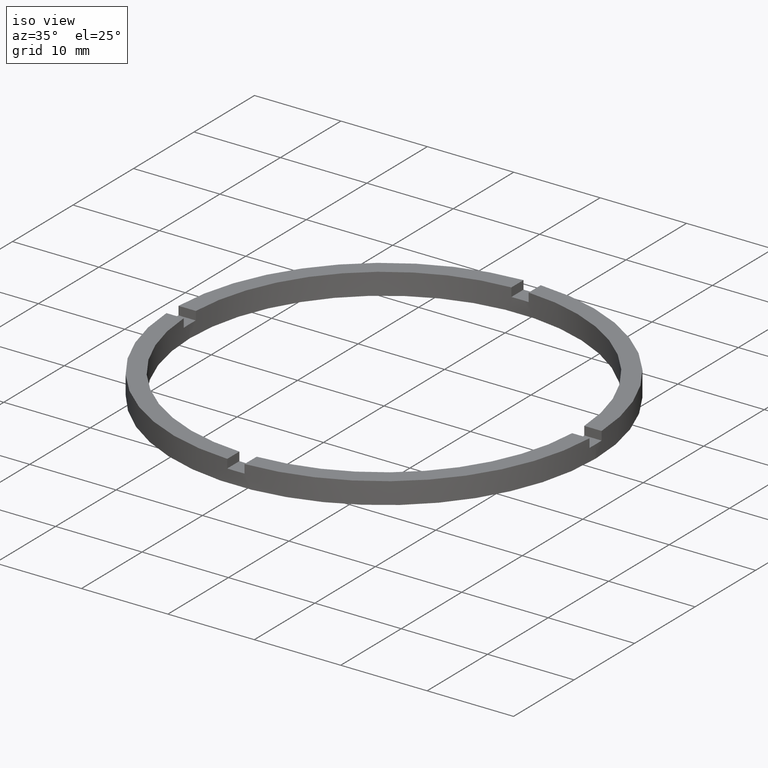
[diagram: clean part render]
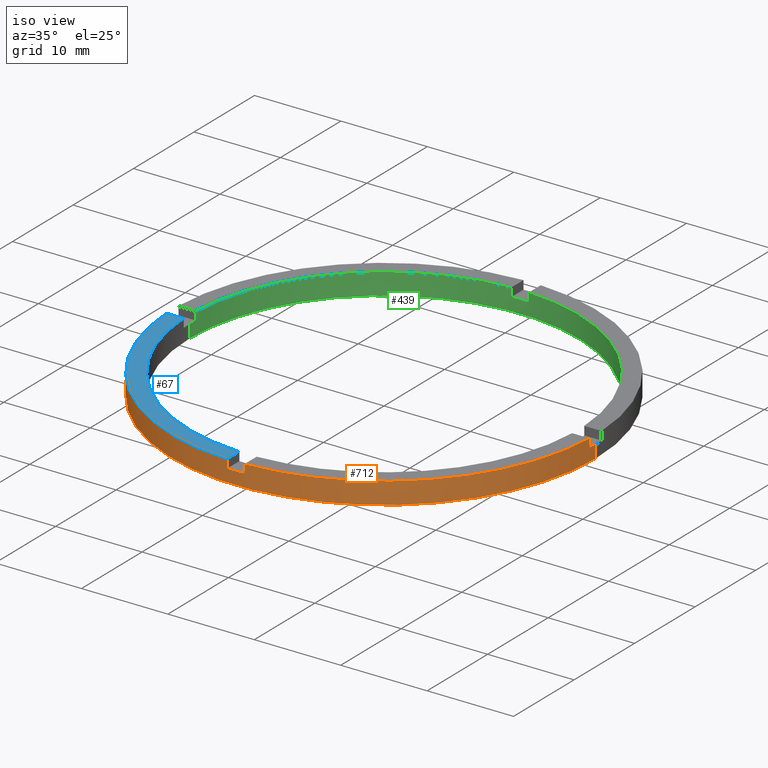
[diagram: same view with three faces highlighted in distinct colors, each labeled with its STEP entity id]
A machine part, iso view with three faces highlighted in distinct colors.
Their STEP definitions:

[orange] entity #712 — the highlighted cylindrical surface (partial cylindrical patch) has radius 24.5 mm, axis along (-0, -0, -1).
#10 = VERTEX_POINT ( 'NONE', #254 ) ;
#21 = VERTEX_POINT ( 'NONE', #198 ) ;
#38 = EDGE_LOOP ( 'NONE', ( #185, #371, #123, #92, #451, #166, #627, #118, #329, #117, #604, #634 ) ) ;
#39 = CIRCLE ( 'NONE', #418, 24.50000000000000000 ) ;
#45 = CARTESIAN_POINT ( 'NONE',  ( 0.000000000000000000, 0.000000000000000000, 1.500000000000000000 ) ) ;
#49 = CARTESIAN_POINT ( 'NONE',  ( 0.000000000000000000, 0.000000000000000000, 1.500000000000000000 ) ) ;
#50 = DIRECTION ( 'NONE',  ( -0.000000000000000000, -0.000000000000000000, -1.000000000000000000 ) ) ;
#61 = EDGE_CURVE ( 'NONE', #21, #437, #561, .T. ) ;
#62 = CIRCLE ( 'NONE', #656, 24.50000000000000000 ) ;
#66 = FACE_OUTER_BOUND ( 'NONE', #38, .T. ) ;
#82 = LINE ( 'NONE', #376, #103 ) ;
#92 = ORIENTED_EDGE ( 'NONE', *, *, #714, .F. ) ;
#94 = CIRCLE ( 'NONE', #199, 24.50000000000000000 ) ;
#95 = EDGE_CURVE ( 'NONE', #693, #437, #308, .T. ) ;
#103 = VECTOR ( 'NONE', #718, 1000.000000000000000 ) ;
#106 = CARTESIAN_POINT ( 'NONE',  ( -24.47958332978729601, -1.000000000000025757, 2.500000000000000000 ) ) ;
#117 = ORIENTED_EDGE ( 'NONE', *, *, #95, .F. ) ;
#118 = ORIENTED_EDGE ( 'NONE', *, *, #740, .F. ) ;
#123 = ORIENTED_EDGE ( 'NONE', *, *, #699, .T. ) ;
#125 = DIRECTION ( 'NONE',  ( -0.000000000000000000, -0.000000000000000000, -1.000000000000000000 ) ) ;
#126 = DIRECTION ( 'NONE',  ( 1.000000000000000000, 0.000000000000000000, 0.000000000000000000 ) ) ;
#157 = CARTESIAN_POINT ( 'NONE',  ( -24.50000000000000000, 0.000000000000000000, 2.500000000000000000 ) ) ;
#158 = DIRECTION ( 'NONE',  ( 0.000000000000000000, 0.000000000000000000, 1.000000000000000000 ) ) ;
#161 = DIRECTION ( 'NONE',  ( 0.000000000000000000, 0.000000000000000000, 1.000000000000000000 ) ) ;
#166 = ORIENTED_EDGE ( 'NONE', *, *, #200, .F. ) ;
#175 = AXIS2_PLACEMENT_3D ( 'NONE', #409, #50, #745 ) ;
#178 = CARTESIAN_POINT ( 'NONE',  ( 0.9999999999998393507, -24.47958332978729956, 1.500000000000000000 ) ) ;
#185 = ORIENTED_EDGE ( 'NONE', *, *, #440, .F. ) ;
#198 = CARTESIAN_POINT ( 'NONE',  ( -24.47958332978729601, -1.000000000000025757, 2.500000000000000000 ) ) ;
#199 = AXIS2_PLACEMENT_3D ( 'NONE', #408, #744, #259 ) ;
#200 = EDGE_CURVE ( 'NONE', #10, #632, #39, .T. ) ;
#204 = DIRECTION ( 'NONE',  ( 1.000000000000000000, 0.000000000000000000, 0.000000000000000000 ) ) ;
#207 = DIRECTION ( 'NONE',  ( -0.000000000000000000, -0.000000000000000000, -1.000000000000000000 ) ) ;
#209 = AXIS2_PLACEMENT_3D ( 'NONE', #45, #486, #446 ) ;
#214 = CARTESIAN_POINT ( 'NONE',  ( 24.50000000000000000, 3.000384657911015469E-15, 0.000000000000000000 ) ) ;
#254 = CARTESIAN_POINT ( 'NONE',  ( -1.000000000000160760, -24.47958332978728890, 1.500000000000000000 ) ) ;
#259 = DIRECTION ( 'NONE',  ( 1.000000000000000000, 0.000000000000000000, 0.000000000000000000 ) ) ;
#260 = DIRECTION ( 'NONE',  ( 0.000000000000000000, 0.000000000000000000, 1.000000000000000000 ) ) ;
#264 = LINE ( 'NONE', #661, #269 ) ;
#269 = VECTOR ( 'NONE', #771, 1000.000000000000000 ) ;
#298 = CARTESIAN_POINT ( 'NONE',  ( 24.47958332978728890, -1.000000000000157652, 1.500000000000000000 ) ) ;
#303 = VECTOR ( 'NONE', #207, 1000.000000000000000 ) ;
#307 = EDGE_CURVE ( 'NONE', #364, #632, #264, .T. ) ;
#308 = CIRCLE ( 'NONE', #209, 24.50000000000000000 ) ;
#319 = LINE ( 'NONE', #515, #591 ) ;
#325 = CIRCLE ( 'NONE', #399, 24.50000000000000000 ) ;
#326 = VERTEX_POINT ( 'NONE', #298 ) ;
#329 = ORIENTED_EDGE ( 'NONE', *, *, #61, .T. ) ;
#339 = DIRECTION ( 'NONE',  ( 1.000000000000000000, 0.000000000000000000, 0.000000000000000000 ) ) ;
#340 = VERTEX_POINT ( 'NONE', #602 ) ;
#342 = VECTOR ( 'NONE', #733, 1000.000000000000000 ) ;
#356 = CARTESIAN_POINT ( 'NONE',  ( 0.000000000000000000, 0.000000000000000000, 2.500000000000000000 ) ) ;
#359 = LINE ( 'NONE', #644, #342 ) ;
#364 = VERTEX_POINT ( 'NONE', #550 ) ;
#371 = ORIENTED_EDGE ( 'NONE', *, *, #657, .F. ) ;
#376 = CARTESIAN_POINT ( 'NONE',  ( 24.50000000000000000, 3.000384657911015469E-15, 2.500000000000000000 ) ) ;
#399 = AXIS2_PLACEMENT_3D ( 'NONE', #356, #260, #126 ) ;
#408 = CARTESIAN_POINT ( 'NONE',  ( 0.000000000000000000, 0.000000000000000000, 0.000000000000000000 ) ) ;
#409 = CARTESIAN_POINT ( 'NONE',  ( 0.000000000000000000, 0.000000000000000000, 2.500000000000000000 ) ) ;
#418 = AXIS2_PLACEMENT_3D ( 'NONE', #736, #426, #671 ) ;
#426 = DIRECTION ( 'NONE',  ( -0.000000000000000000, 0.000000000000000000, 1.000000000000000000 ) ) ;
#429 = CARTESIAN_POINT ( 'NONE',  ( 0.000000000000000000, 0.000000000000000000, 2.500000000000000000 ) ) ;
#437 = VERTEX_POINT ( 'NONE', #487 ) ;
#440 = EDGE_CURVE ( 'NONE', #475, #455, #82, .T. ) ;
#446 = DIRECTION ( 'NONE',  ( 1.000000000000000000, 0.000000000000000000, 0.000000000000000000 ) ) ;
#451 = ORIENTED_EDGE ( 'NONE', *, *, #307, .T. ) ;
#455 = VERTEX_POINT ( 'NONE', #214 ) ;
#463 = DIRECTION ( 'NONE',  ( 0.000000000000000000, 0.000000000000000000, 1.000000000000000000 ) ) ;
#475 = VERTEX_POINT ( 'NONE', #651 ) ;
#479 = VERTEX_POINT ( 'NONE', #684 ) ;
#486 = DIRECTION ( 'NONE',  ( 0.000000000000000000, 0.000000000000000000, 1.000000000000000000 ) ) ;
#487 = CARTESIAN_POINT ( 'NONE',  ( -24.47958332978729601, -1.000000000000025757, 1.500000000000000000 ) ) ;
#515 = CARTESIAN_POINT ( 'NONE',  ( 24.47958332978728890, -1.000000000000157652, 2.500000000000000000 ) ) ;
#550 = CARTESIAN_POINT ( 'NONE',  ( 0.9999999999998393507, -24.47958332978729956, 2.500000000000000000 ) ) ;
#561 = LINE ( 'NONE', #106, #303 ) ;
#591 = VECTOR ( 'NONE', #463, 1000.000000000000000 ) ;
#592 = EDGE_CURVE ( 'NONE', #10, #479, #359, .T. ) ;
#596 = CYLINDRICAL_SURFACE ( 'NONE', #175, 24.50000000000000000 ) ;
#602 = CARTESIAN_POINT ( 'NONE',  ( 24.47958332978728890, -1.000000000000157652, 2.500000000000000000 ) ) ;
#604 = ORIENTED_EDGE ( 'NONE', *, *, #643, .T. ) ;
#613 = LINE ( 'NONE', #157, #615 ) ;
#615 = VECTOR ( 'NONE', #125, 1000.000000000000000 ) ;
#627 = ORIENTED_EDGE ( 'NONE', *, *, #592, .T. ) ;
#632 = VERTEX_POINT ( 'NONE', #178 ) ;
#634 = ORIENTED_EDGE ( 'NONE', *, *, #647, .T. ) ;
#640 = VERTEX_POINT ( 'NONE', #641 ) ;
#641 = CARTESIAN_POINT ( 'NONE',  ( -24.50000000000000000, 0.000000000000000000, 0.000000000000000000 ) ) ;
#643 = EDGE_CURVE ( 'NONE', #693, #640, #613, .T. ) ;
#644 = CARTESIAN_POINT ( 'NONE',  ( -1.000000000000160760, -24.47958332978728890, 2.500000000000000000 ) ) ;
#647 = EDGE_CURVE ( 'NONE', #640, #455, #94, .T. ) ;
#651 = CARTESIAN_POINT ( 'NONE',  ( 24.50000000000000000, 3.000384657911015469E-15, 1.500000000000000000 ) ) ;
#656 = AXIS2_PLACEMENT_3D ( 'NONE', #49, #161, #204 ) ;
#657 = EDGE_CURVE ( 'NONE', #326, #475, #62, .T. ) ;
#661 = CARTESIAN_POINT ( 'NONE',  ( 0.9999999999998393507, -24.47958332978729956, 2.500000000000000000 ) ) ;
#671 = DIRECTION ( 'NONE',  ( 1.000000000000000000, 0.000000000000000000, 0.000000000000000000 ) ) ;
#684 = CARTESIAN_POINT ( 'NONE',  ( -1.000000000000160760, -24.47958332978728890, 2.500000000000000000 ) ) ;
#693 = VERTEX_POINT ( 'NONE', #695 ) ;
#695 = CARTESIAN_POINT ( 'NONE',  ( -24.50000000000000000, 0.000000000000000000, 1.500000000000000000 ) ) ;
#699 = EDGE_CURVE ( 'NONE', #326, #340, #319, .T. ) ;
#712 = ADVANCED_FACE ( 'NONE', ( #66 ), #596, .T. ) ;
#714 = EDGE_CURVE ( 'NONE', #364, #340, #325, .T. ) ;
#718 = DIRECTION ( 'NONE',  ( -0.000000000000000000, -0.000000000000000000, -1.000000000000000000 ) ) ;
#728 = AXIS2_PLACEMENT_3D ( 'NONE', #429, #158, #339 ) ;
#733 = DIRECTION ( 'NONE',  ( 0.000000000000000000, 0.000000000000000000, 1.000000000000000000 ) ) ;
#736 = CARTESIAN_POINT ( 'NONE',  ( 0.000000000000000000, 0.000000000000000000, 1.500000000000000000 ) ) ;
#740 = EDGE_CURVE ( 'NONE', #21, #479, #757, .T. ) ;
#744 = DIRECTION ( 'NONE',  ( 0.000000000000000000, 0.000000000000000000, 1.000000000000000000 ) ) ;
#745 = DIRECTION ( 'NONE',  ( -1.000000000000000000, 0.000000000000000000, 0.000000000000000000 ) ) ;
#757 = CIRCLE ( 'NONE', #728, 24.50000000000000000 ) ;
#771 = DIRECTION ( 'NONE',  ( -0.000000000000000000, -0.000000000000000000, -1.000000000000000000 ) ) ;

[blue] entity #67 — the highlighted planar face has unit normal (0, 0, 1).
#9 = DIRECTION ( 'NONE',  ( 1.000000000000000000, 1.734723475976807341E-16, -0.000000000000000000 ) ) ;
#19 = DIRECTION ( 'NONE',  ( 0.000000000000000000, 0.000000000000000000, 1.000000000000000000 ) ) ;
#21 = VERTEX_POINT ( 'NONE', #198 ) ;
#51 = FACE_OUTER_BOUND ( 'NONE', #753, .T. ) ;
#67 = ADVANCED_FACE ( 'NONE', ( #51 ), #146, .T. ) ;
#72 = VERTEX_POINT ( 'NONE', #655 ) ;
#89 = VECTOR ( 'NONE', #401, 1000.000000000000000 ) ;
#107 = VERTEX_POINT ( 'NONE', #646 ) ;
#109 = AXIS2_PLACEMENT_3D ( 'NONE', #600, #19, #735 ) ;
#133 = EDGE_CURVE ( 'NONE', #72, #107, #569, .T. ) ;
#146 = PLANE ( 'NONE',  #109 ) ;
#156 = DIRECTION ( 'NONE',  ( 1.000000000000000000, 0.000000000000000000, 0.000000000000000000 ) ) ;
#158 = DIRECTION ( 'NONE',  ( 0.000000000000000000, 0.000000000000000000, 1.000000000000000000 ) ) ;
#165 = EDGE_CURVE ( 'NONE', #21, #72, #299, .T. ) ;
#198 = CARTESIAN_POINT ( 'NONE',  ( -24.47958332978729601, -1.000000000000025757, 2.500000000000000000 ) ) ;
#256 = DIRECTION ( 'NONE',  ( 0.000000000000000000, 0.000000000000000000, 1.000000000000000000 ) ) ;
#284 = VECTOR ( 'NONE', #9, 1000.000000000000000 ) ;
#299 = LINE ( 'NONE', #420, #284 ) ;
#314 = LINE ( 'NONE', #723, #89 ) ;
#339 = DIRECTION ( 'NONE',  ( 1.000000000000000000, 0.000000000000000000, 0.000000000000000000 ) ) ;
#361 = ORIENTED_EDGE ( 'NONE', *, *, #165, .F. ) ;
#382 = AXIS2_PLACEMENT_3D ( 'NONE', #758, #256, #156 ) ;
#401 = DIRECTION ( 'NONE',  ( 1.301042606982605321E-16, -1.000000000000000000, 0.000000000000000000 ) ) ;
#420 = CARTESIAN_POINT ( 'NONE',  ( -14.50000000000018652, -1.000000000000023981, 2.500000000000000000 ) ) ;
#429 = CARTESIAN_POINT ( 'NONE',  ( 0.000000000000000000, 0.000000000000000000, 2.500000000000000000 ) ) ;
#479 = VERTEX_POINT ( 'NONE', #684 ) ;
#522 = ORIENTED_EDGE ( 'NONE', *, *, #133, .F. ) ;
#526 = ORIENTED_EDGE ( 'NONE', *, *, #740, .T. ) ;
#527 = ORIENTED_EDGE ( 'NONE', *, *, #606, .F. ) ;
#569 = CIRCLE ( 'NONE', #382, 22.50000000000000355 ) ;
#600 = CARTESIAN_POINT ( 'NONE',  ( 0.000000000000000000, 0.000000000000000000, 2.500000000000000000 ) ) ;
#606 = EDGE_CURVE ( 'NONE', #107, #479, #314, .T. ) ;
#646 = CARTESIAN_POINT ( 'NONE',  ( -1.000000000000161204, -22.47776679298901925, 2.500000000000000000 ) ) ;
#655 = CARTESIAN_POINT ( 'NONE',  ( -22.47776679298902636, -1.000000000000025313, 2.500000000000000000 ) ) ;
#684 = CARTESIAN_POINT ( 'NONE',  ( -1.000000000000160760, -24.47958332978728890, 2.500000000000000000 ) ) ;
#723 = CARTESIAN_POINT ( 'NONE',  ( -1.000000000000162093, -14.50000000000018119, 2.500000000000000000 ) ) ;
#728 = AXIS2_PLACEMENT_3D ( 'NONE', #429, #158, #339 ) ;
#735 = DIRECTION ( 'NONE',  ( 1.000000000000000000, 0.000000000000000000, -0.000000000000000000 ) ) ;
#740 = EDGE_CURVE ( 'NONE', #21, #479, #757, .T. ) ;
#753 = EDGE_LOOP ( 'NONE', ( #527, #522, #361, #526 ) ) ;
#757 = CIRCLE ( 'NONE', #728, 24.50000000000000000 ) ;
#758 = CARTESIAN_POINT ( 'NONE',  ( 0.000000000000000000, 0.000000000000000000, 2.500000000000000000 ) ) ;

[green] entity #439 — the highlighted cylindrical surface (partial cylindrical patch) has radius 22.5 mm, axis along (-0, -0, -1).
#5 = ORIENTED_EDGE ( 'NONE', *, *, #212, .F. ) ;
#24 = CARTESIAN_POINT ( 'NONE',  ( -22.50000000000000355, 0.000000000000000000, 2.500000000000000000 ) ) ;
#26 = VERTEX_POINT ( 'NONE', #675 ) ;
#27 = DIRECTION ( 'NONE',  ( 0.000000000000000000, 0.000000000000000000, 1.000000000000000000 ) ) ;
#48 = LINE ( 'NONE', #630, #54 ) ;
#54 = VECTOR ( 'NONE', #727, 1000.000000000000000 ) ;
#55 = VECTOR ( 'NONE', #539, 1000.000000000000000 ) ;
#68 = CIRCLE ( 'NONE', #135, 22.50000000000000355 ) ;
#70 = CARTESIAN_POINT ( 'NONE',  ( 0.9999999999999740208, 22.47776679298902636, 2.500000000000000000 ) ) ;
#79 = CARTESIAN_POINT ( 'NONE',  ( -22.47776679298902636, 0.9999999999999746869, 1.500000000000000000 ) ) ;
#80 = LINE ( 'NONE', #444, #358 ) ;
#87 = CIRCLE ( 'NONE', #447, 22.50000000000000355 ) ;
#116 = AXIS2_PLACEMENT_3D ( 'NONE', #663, #369, #416 ) ;
#119 = ORIENTED_EDGE ( 'NONE', *, *, #610, .T. ) ;
#135 = AXIS2_PLACEMENT_3D ( 'NONE', #593, #729, #237 ) ;
#148 = CARTESIAN_POINT ( 'NONE',  ( 0.000000000000000000, 0.000000000000000000, 1.500000000000000000 ) ) ;
#160 = EDGE_CURVE ( 'NONE', #263, #271, #48, .T. ) ;
#179 = EDGE_LOOP ( 'NONE', ( #422, #251, #450, #119, #248, #490, #5, #183, #374, #365, #453, #530 ) ) ;
#183 = ORIENTED_EDGE ( 'NONE', *, *, #232, .T. ) ;
#196 = CARTESIAN_POINT ( 'NONE',  ( 22.50000000000000355, 2.755455298081545172E-15, 0.000000000000000000 ) ) ;
#197 = DIRECTION ( 'NONE',  ( -0.000000000000000000, -0.000000000000000000, -1.000000000000000000 ) ) ;
#208 = EDGE_CURVE ( 'NONE', #230, #529, #265, .T. ) ;
#210 = DIRECTION ( 'NONE',  ( 1.000000000000000000, 0.000000000000000000, 0.000000000000000000 ) ) ;
#212 = EDGE_CURVE ( 'NONE', #713, #707, #579, .T. ) ;
#225 = CARTESIAN_POINT ( 'NONE',  ( -22.50000000000000355, 0.000000000000000000, 0.000000000000000000 ) ) ;
#230 = VERTEX_POINT ( 'NONE', #412 ) ;
#232 = EDGE_CURVE ( 'NONE', #713, #271, #583, .T. ) ;
#237 = DIRECTION ( 'NONE',  ( 1.000000000000000000, 0.000000000000000000, 0.000000000000000000 ) ) ;
#248 = ORIENTED_EDGE ( 'NONE', *, *, #428, .F. ) ;
#251 = ORIENTED_EDGE ( 'NONE', *, *, #572, .T. ) ;
#252 = CARTESIAN_POINT ( 'NONE',  ( 22.50000000000000355, 2.755455298081545172E-15, 1.500000000000000000 ) ) ;
#258 = VERTEX_POINT ( 'NONE', #70 ) ;
#263 = VERTEX_POINT ( 'NONE', #79 ) ;
#265 = LINE ( 'NONE', #24, #542 ) ;
#266 = DIRECTION ( 'NONE',  ( 0.000000000000000000, -0.000000000000000000, 1.000000000000000000 ) ) ;
#267 = CARTESIAN_POINT ( 'NONE',  ( -1.000000000000025979, 22.47776679298902636, 2.500000000000000000 ) ) ;
#271 = VERTEX_POINT ( 'NONE', #466 ) ;
#316 = CARTESIAN_POINT ( 'NONE',  ( 0.9999999999999740208, 22.47776679298902636, 1.500000000000000000 ) ) ;
#335 = FACE_OUTER_BOUND ( 'NONE', #179, .T. ) ;
#338 = LINE ( 'NONE', #741, #609 ) ;
#344 = EDGE_CURVE ( 'NONE', #263, #230, #601, .T. ) ;
#357 = CIRCLE ( 'NONE', #702, 22.50000000000000355 ) ;
#358 = VECTOR ( 'NONE', #27, 1000.000000000000000 ) ;
#365 = ORIENTED_EDGE ( 'NONE', *, *, #344, .T. ) ;
#369 = DIRECTION ( 'NONE',  ( 0.000000000000000000, 0.000000000000000000, 1.000000000000000000 ) ) ;
#374 = ORIENTED_EDGE ( 'NONE', *, *, #160, .F. ) ;
#375 = DIRECTION ( 'NONE',  ( -0.000000000000000000, -0.000000000000000000, -1.000000000000000000 ) ) ;
#383 = DIRECTION ( 'NONE',  ( 0.000000000000000000, 0.000000000000000000, 1.000000000000000000 ) ) ;
#386 = AXIS2_PLACEMENT_3D ( 'NONE', #698, #747, #701 ) ;
#391 = DIRECTION ( 'NONE',  ( -0.000000000000000000, -0.000000000000000000, -1.000000000000000000 ) ) ;
#400 = EDGE_CURVE ( 'NONE', #500, #529, #594, .T. ) ;
#405 = CARTESIAN_POINT ( 'NONE',  ( 0.000000000000000000, 0.000000000000000000, 1.500000000000000000 ) ) ;
#412 = CARTESIAN_POINT ( 'NONE',  ( -22.50000000000000355, 0.000000000000000000, 1.500000000000000000 ) ) ;
#416 = DIRECTION ( 'NONE',  ( 1.000000000000000000, 0.000000000000000000, 0.000000000000000000 ) ) ;
#422 = ORIENTED_EDGE ( 'NONE', *, *, #780, .F. ) ;
#423 = CARTESIAN_POINT ( 'NONE',  ( 0.000000000000000000, 0.000000000000000000, 0.000000000000000000 ) ) ;
#428 = EDGE_CURVE ( 'NONE', #546, #258, #80, .T. ) ;
#435 = CARTESIAN_POINT ( 'NONE',  ( 22.47776679298903346, 0.9999999999998421263, 1.500000000000000000 ) ) ;
#439 = ADVANCED_FACE ( 'NONE', ( #335 ), #585, .F. ) ;
#444 = CARTESIAN_POINT ( 'NONE',  ( 0.9999999999999740208, 22.47776679298902636, 2.500000000000000000 ) ) ;
#447 = AXIS2_PLACEMENT_3D ( 'NONE', #148, #383, #737 ) ;
#450 = ORIENTED_EDGE ( 'NONE', *, *, #492, .F. ) ;
#453 = ORIENTED_EDGE ( 'NONE', *, *, #208, .T. ) ;
#456 = DIRECTION ( 'NONE',  ( 1.000000000000000000, 0.000000000000000000, 0.000000000000000000 ) ) ;
#466 = CARTESIAN_POINT ( 'NONE',  ( -22.47776679298902636, 0.9999999999999746869, 2.500000000000000000 ) ) ;
#471 = CARTESIAN_POINT ( 'NONE',  ( -1.000000000000025979, 22.47776679298902636, 2.500000000000000000 ) ) ;
#490 = ORIENTED_EDGE ( 'NONE', *, *, #662, .T. ) ;
#492 = EDGE_CURVE ( 'NONE', #26, #547, #338, .T. ) ;
#500 = VERTEX_POINT ( 'NONE', #196 ) ;
#508 = LINE ( 'NONE', #673, #777 ) ;
#529 = VERTEX_POINT ( 'NONE', #225 ) ;
#530 = ORIENTED_EDGE ( 'NONE', *, *, #400, .F. ) ;
#533 = DIRECTION ( 'NONE',  ( 0.000000000000000000, 0.000000000000000000, 1.000000000000000000 ) ) ;
#539 = DIRECTION ( 'NONE',  ( -0.000000000000000000, -0.000000000000000000, -1.000000000000000000 ) ) ;
#542 = VECTOR ( 'NONE', #375, 1000.000000000000000 ) ;
#546 = VERTEX_POINT ( 'NONE', #316 ) ;
#547 = VERTEX_POINT ( 'NONE', #435 ) ;
#560 = VERTEX_POINT ( 'NONE', #252 ) ;
#572 = EDGE_CURVE ( 'NONE', #560, #547, #87, .T. ) ;
#579 = LINE ( 'NONE', #471, #55 ) ;
#583 = CIRCLE ( 'NONE', #116, 22.50000000000000355 ) ;
#585 = CYLINDRICAL_SURFACE ( 'NONE', #722, 22.50000000000000355 ) ;
#593 = CARTESIAN_POINT ( 'NONE',  ( 0.000000000000000000, 0.000000000000000000, 2.500000000000000000 ) ) ;
#594 = CIRCLE ( 'NONE', #614, 22.50000000000000355 ) ;
#601 = CIRCLE ( 'NONE', #386, 22.50000000000000355 ) ;
#609 = VECTOR ( 'NONE', #391, 1000.000000000000000 ) ;
#610 = EDGE_CURVE ( 'NONE', #26, #258, #68, .T. ) ;
#614 = AXIS2_PLACEMENT_3D ( 'NONE', #423, #533, #210 ) ;
#630 = CARTESIAN_POINT ( 'NONE',  ( -22.47776679298902636, 0.9999999999999746869, 2.500000000000000000 ) ) ;
#649 = CARTESIAN_POINT ( 'NONE',  ( 0.000000000000000000, 0.000000000000000000, 2.500000000000000000 ) ) ;
#662 = EDGE_CURVE ( 'NONE', #546, #707, #357, .T. ) ;
#663 = CARTESIAN_POINT ( 'NONE',  ( 0.000000000000000000, 0.000000000000000000, 2.500000000000000000 ) ) ;
#669 = DIRECTION ( 'NONE',  ( -0.000000000000000000, -0.000000000000000000, -1.000000000000000000 ) ) ;
#673 = CARTESIAN_POINT ( 'NONE',  ( 22.50000000000000355, 2.755455298081545172E-15, 2.500000000000000000 ) ) ;
#675 = CARTESIAN_POINT ( 'NONE',  ( 22.47776679298903346, 0.9999999999998421263, 2.500000000000000000 ) ) ;
#696 = CARTESIAN_POINT ( 'NONE',  ( -1.000000000000025979, 22.47776679298902636, 1.500000000000000000 ) ) ;
#698 = CARTESIAN_POINT ( 'NONE',  ( 0.000000000000000000, 0.000000000000000000, 1.500000000000000000 ) ) ;
#701 = DIRECTION ( 'NONE',  ( 1.000000000000000000, 0.000000000000000000, 0.000000000000000000 ) ) ;
#702 = AXIS2_PLACEMENT_3D ( 'NONE', #405, #266, #456 ) ;
#707 = VERTEX_POINT ( 'NONE', #696 ) ;
#713 = VERTEX_POINT ( 'NONE', #267 ) ;
#722 = AXIS2_PLACEMENT_3D ( 'NONE', #649, #669, #769 ) ;
#727 = DIRECTION ( 'NONE',  ( 0.000000000000000000, 0.000000000000000000, 1.000000000000000000 ) ) ;
#729 = DIRECTION ( 'NONE',  ( 0.000000000000000000, 0.000000000000000000, 1.000000000000000000 ) ) ;
#737 = DIRECTION ( 'NONE',  ( 1.000000000000000000, 0.000000000000000000, 0.000000000000000000 ) ) ;
#741 = CARTESIAN_POINT ( 'NONE',  ( 22.47776679298903346, 0.9999999999998421263, 2.500000000000000000 ) ) ;
#747 = DIRECTION ( 'NONE',  ( 0.000000000000000000, 0.000000000000000000, 1.000000000000000000 ) ) ;
#769 = DIRECTION ( 'NONE',  ( -1.000000000000000000, 0.000000000000000000, 0.000000000000000000 ) ) ;
#777 = VECTOR ( 'NONE', #197, 1000.000000000000000 ) ;
#780 = EDGE_CURVE ( 'NONE', #560, #500, #508, .T. ) ;